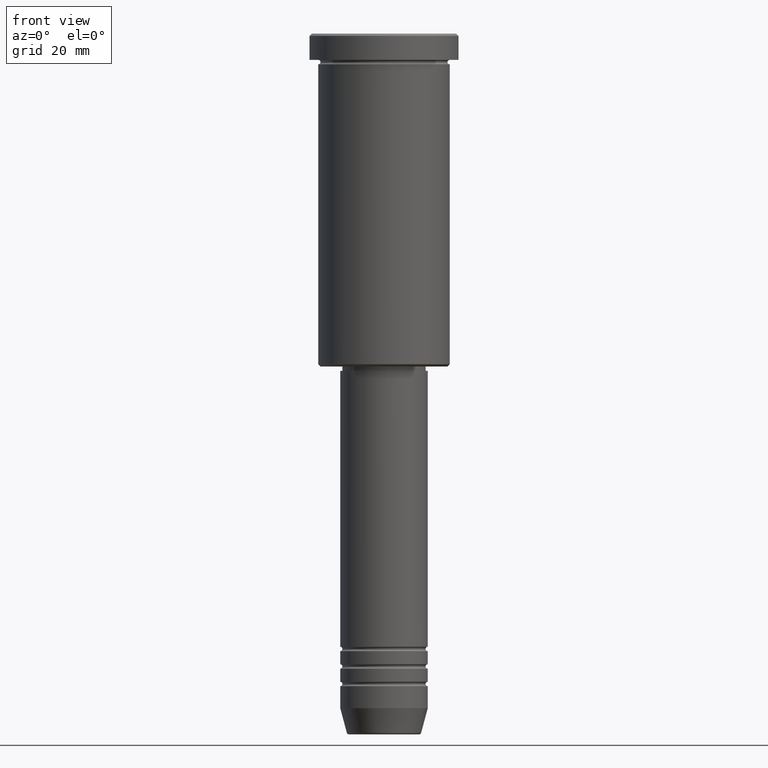
[diagram: clean part render]
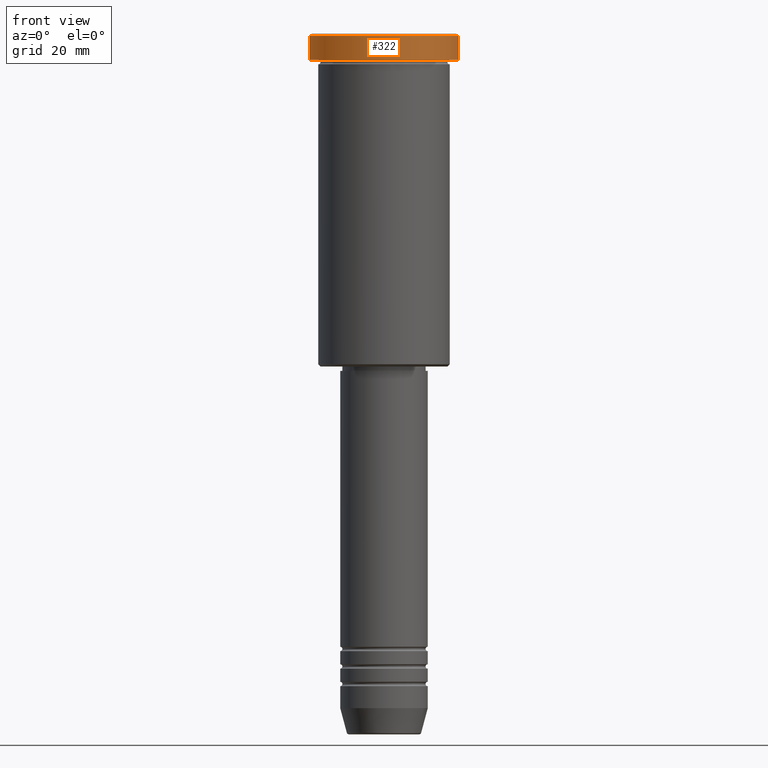
[diagram: same view with one face highlighted and labeled with its STEP entity id]
A machine part, front view. The second image highlights one B-rep face of the part: STEP entity #322.
In plain terms, the highlighted cylindrical surface (partial cylindrical patch) has radius 17 mm, axis along (-0, -0, 1).
Its self-contained STEP definition (entity closure, byte-faithful):
#46 = VERTEX_POINT ( 'NONE', #231 ) ;
#80 = DIRECTION ( 'NONE',  ( 1.000000000000000000, 0.000000000000000000, 0.000000000000000000 ) ) ;
#119 = CARTESIAN_POINT ( 'NONE',  ( 17.00000000000000000, 0.000000000000000000, -0.5000000000000213163 ) ) ;
#154 = ORIENTED_EDGE ( 'NONE', *, *, #1003, .T. ) ;
#165 = LINE ( 'NONE', #919, #1174 ) ;
#211 = EDGE_LOOP ( 'NONE', ( #285, #915, #154, #635 ) ) ;
#217 = VECTOR ( 'NONE', #622, 1000.000000000000000 ) ;
#231 = CARTESIAN_POINT ( 'NONE',  ( -17.00000000000000000, 2.081899558550500280E-15, -5.999999999999994671 ) ) ;
#274 = CARTESIAN_POINT ( 'NONE',  ( 17.00000000000000000, 0.000000000000000000, -5.999999999999994671 ) ) ;
#285 = ORIENTED_EDGE ( 'NONE', *, *, #856, .F. ) ;
#322 = ADVANCED_FACE ( 'NONE', ( #1109 ), #457, .T. ) ;
#387 = CIRCLE ( 'NONE', #714, 17.00000000000000000 ) ;
#397 = EDGE_CURVE ( 'NONE', #46, #1079, #387, .T. ) ;
#435 = CARTESIAN_POINT ( 'NONE',  ( 0.000000000000000000, 0.000000000000000000, -0.5000000000000213163 ) ) ;
#457 = CYLINDRICAL_SURFACE ( 'NONE', #523, 17.00000000000000000 ) ;
#466 = CIRCLE ( 'NONE', #1137, 17.00000000000000000 ) ;
#480 = VERTEX_POINT ( 'NONE', #1167 ) ;
#523 = AXIS2_PLACEMENT_3D ( 'NONE', #657, #1098, #569 ) ;
#569 = DIRECTION ( 'NONE',  ( 1.000000000000000000, 0.000000000000000000, 0.000000000000000000 ) ) ;
#587 = VERTEX_POINT ( 'NONE', #119 ) ;
#622 = DIRECTION ( 'NONE',  ( -0.000000000000000000, -0.000000000000000000, 1.000000000000000000 ) ) ;
#635 = ORIENTED_EDGE ( 'NONE', *, *, #1143, .T. ) ;
#657 = CARTESIAN_POINT ( 'NONE',  ( 0.000000000000000000, 0.000000000000000000, 0.000000000000000000 ) ) ;
#714 = AXIS2_PLACEMENT_3D ( 'NONE', #943, #1133, #857 ) ;
#802 = DIRECTION ( 'NONE',  ( 0.000000000000000000, 0.000000000000000000, -1.000000000000000000 ) ) ;
#856 = EDGE_CURVE ( 'NONE', #46, #480, #1006, .T. ) ;
#857 = DIRECTION ( 'NONE',  ( 1.000000000000000000, 0.000000000000000000, 0.000000000000000000 ) ) ;
#915 = ORIENTED_EDGE ( 'NONE', *, *, #397, .T. ) ;
#919 = CARTESIAN_POINT ( 'NONE',  ( 17.00000000000000000, 0.000000000000000000, 0.000000000000000000 ) ) ;
#943 = CARTESIAN_POINT ( 'NONE',  ( 0.000000000000000000, 0.000000000000000000, -5.999999999999994671 ) ) ;
#1003 = EDGE_CURVE ( 'NONE', #1079, #587, #165, .T. ) ;
#1006 = LINE ( 'NONE', #1104, #217 ) ;
#1079 = VERTEX_POINT ( 'NONE', #274 ) ;
#1093 = DIRECTION ( 'NONE',  ( -0.000000000000000000, -0.000000000000000000, 1.000000000000000000 ) ) ;
#1098 = DIRECTION ( 'NONE',  ( -0.000000000000000000, -0.000000000000000000, 1.000000000000000000 ) ) ;
#1104 = CARTESIAN_POINT ( 'NONE',  ( -17.00000000000000000, 2.081899558550500280E-15, 0.000000000000000000 ) ) ;
#1109 = FACE_OUTER_BOUND ( 'NONE', #211, .T. ) ;
#1133 = DIRECTION ( 'NONE',  ( -0.000000000000000000, -0.000000000000000000, 1.000000000000000000 ) ) ;
#1137 = AXIS2_PLACEMENT_3D ( 'NONE', #435, #802, #80 ) ;
#1143 = EDGE_CURVE ( 'NONE', #587, #480, #466, .T. ) ;
#1167 = CARTESIAN_POINT ( 'NONE',  ( -17.00000000000000000, 2.081899558550500280E-15, -0.5000000000000213163 ) ) ;
#1174 = VECTOR ( 'NONE', #1093, 1000.000000000000000 ) ;